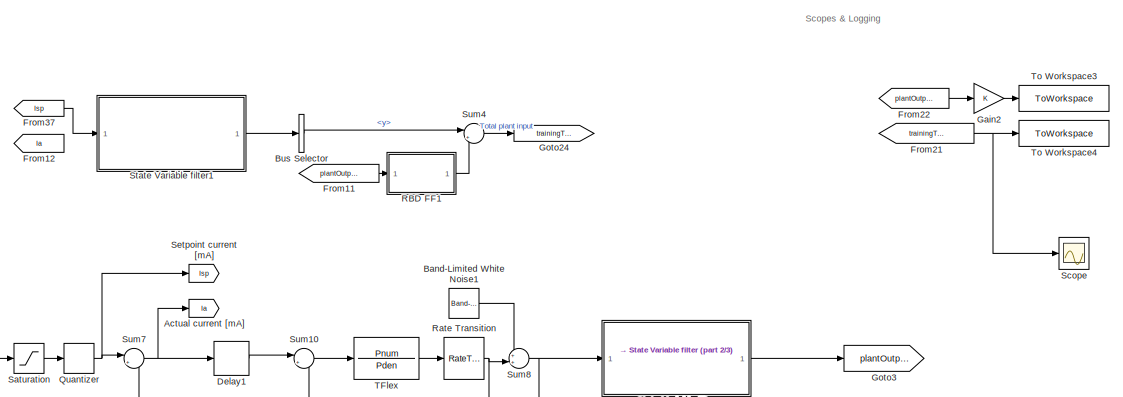
[diagram: root canvas - part 1/3, middle right region]
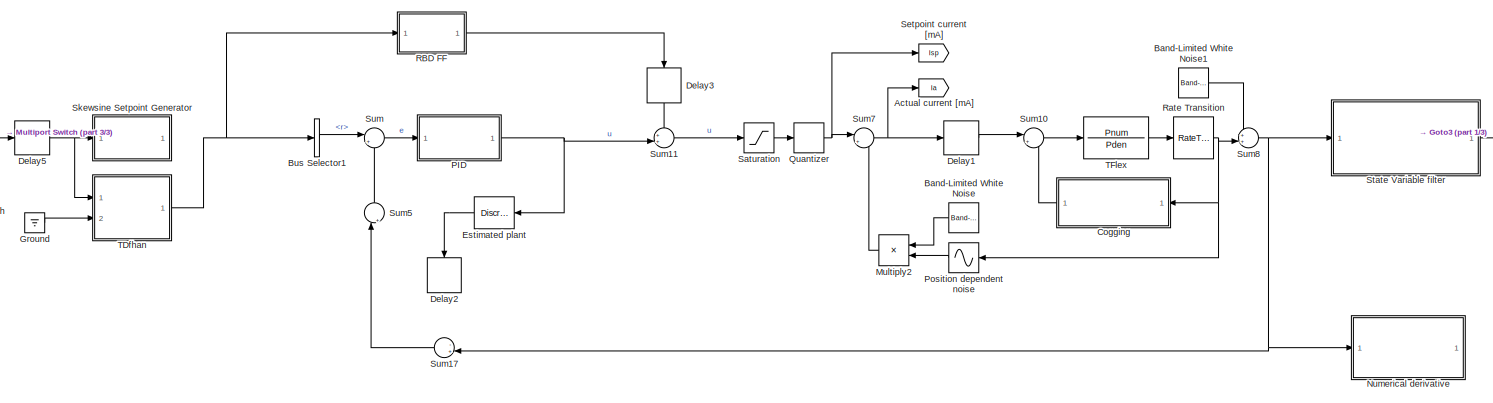
[diagram: root canvas - part 2/3, bottom center region]
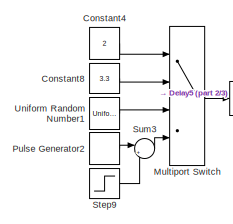
[diagram: root canvas - part 3/3, middle left region]
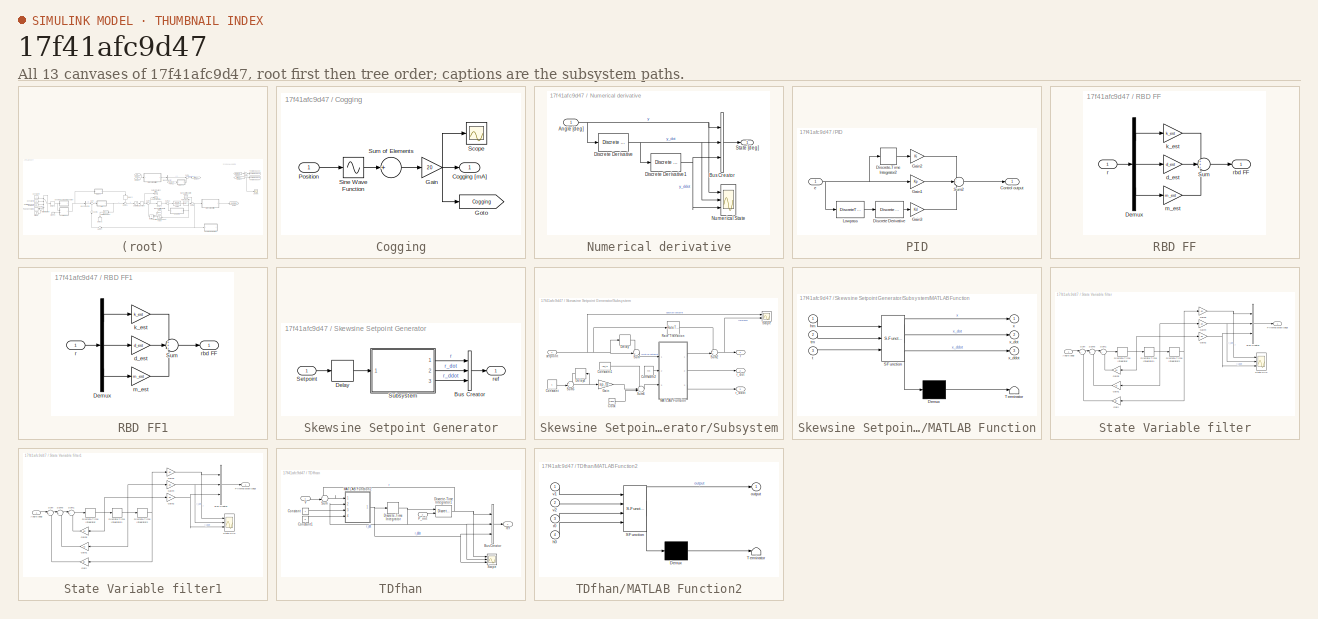
[diagram: thumbnail index - all 13 canvases of the model, root first then tree order]
MODEL slx_17f41afc9d47
KIND model
CONFIG AbsTol = auto
CONFIG EnableMultiTasking = off
CONFIG FixedStep = auto
CONFIG MaxStep = auto
CONFIG MinStep = auto
CONFIG RelTol = 1e-3
CONFIG SampleTimeConstraint = Unconstrained
CONFIG Solver = VariableStepAuto
CONFIG SolverName = VariableStepAuto
CONFIG StartTime = 0.0
CONFIG StopTime = t_sim
BLOCK [Goto] Actual current [mA]
  GotoTag = Ia
BLOCK [Reference] Band-Limited White Noise  REF=simulink/Sources/Band-Limited
White Noise
  Ports = [0, 1]
  SourceBlock = simulink/Sources/Band-Limited\nWhite Noise
  SourceProductBaseCode = SL
  SourceProductName = Simulink
  SourceType = Band-Limited White Noise.
BLOCK [Reference] Band-Limited White Noise1  REF=simulink/Sources/Band-Limited
White Noise
  Ports = [0, 1]
  SourceBlock = simulink/Sources/Band-Limited\nWhite Noise
  SourceProductBaseCode = SL
  SourceProductName = Simulink
  SourceType = Band-Limited White Noise.
BLOCK [BusSelector] Bus Selector
  OutputAsBus = off
  OutputSignals = y
  Ports = [1, 1]
BLOCK [BusSelector] Bus Selector1
  OutputAsBus = off
  OutputSignals = r
  Ports = [1, 1]
BLOCK [SubSystem] Cogging
  Ports = [1, 1]
  RequestExecContextInheritance = off
BLOCK [Outport] Cogging/Cogging [mA]
  IconDisplay = Port number
BLOCK [Gain] Cogging/Gain
  Gain = 20
  OutDataTypeStr = Inherit: Inherit via internal rule
  ParamDataTypeStr = Inherit: Inherit via internal rule
  SaturateOnIntegerOverflow = off
BLOCK [Goto] Cogging/Goto
  GotoTag = Cogging
BLOCK [Inport] Cogging/Position
  IconDisplay = Port number
BLOCK [Scope] Cogging/Scope
  Floating = off
  NumInputPorts = 1
  Ports = [1]
  ScopeSpecificationString = Simulink.scopes.TimeScopeBlockCfg('CurrentConfiguration', extmgr.ConfigurationSet(extmgr.Configuration('Core','General UI',true),extmgr.Configuration('Core','Source UI',true),extmgr.Configuration('Sources','WiredSimulink',true,'DataLoggingVariableName','ScopeData2'),extmgr.Configuration('Visuals','Time Domain',true,'SerializedDisplays',{struct('MinYLimReal','-28.50673','MaxYLimReal','28.50713','YL...<+1388ch>
BLOCK [Sin] Cogging/Sine Wave Function
  Amplitude = a'
  Frequency = 2*pi./f'
  Phase = p'*2*pi
  Ports = [1, 1]
  SampleTime = 0
  TimeSource = Use external signal
BLOCK [Sum] Cogging/Sum of Elements
  InputSameDT = off
  Inputs = +
  OutDataTypeStr = Inherit: Inherit via internal rule
  Ports = [1, 1]
  SaturateOnIntegerOverflow = off
BLOCK [Constant] Constant4
  SampleTime = sp_ts
  Value = 2
BLOCK [Constant] Constant8
  SampleTime = sp_ts
  Value = 3.3
BLOCK [Delay] Delay1
  Commented = through
  DelayLength = 3
  InitialCondition = 0
  InputPortMap = u0
  Ports = [1, 1]
BLOCK [Delay] Delay2
  DelayLength = 3
  InitialCondition = 0
  InputPortMap = u0
  Ports = [1, 1]
BLOCK [Delay] Delay3
  Commented = through
  DelayLength = 3
  InitialCondition = 0
  InputPortMap = u0
  Ports = [1, 1]
BLOCK [Delay] Delay5
  Commented = through
  DelayLength = sp_ts
  InputPortMap = u0
  Ports = [1, 1]
  SampleTime = sp_ts
BLOCK [DiscreteTransferFcn] Estimated plant
  Denominator = P_estden
  InputPortMap = u0
  Numerator = P_estnum
  Ports = [1, 1]
  SampleTime = ts
BLOCK [From] From11
  GotoTag = plantOutput
BLOCK [From] From12
  GotoTag = Ia
BLOCK [From] From21
  GotoTag = trainingTarget
BLOCK [From] From22
  GotoTag = plantOutput
BLOCK [From] From37
  GotoTag = Isp
BLOCK [Gain] Gain2
  OutDataTypeStr = Inherit: Inherit via internal rule
  ParamDataTypeStr = Inherit: Inherit via internal rule
  SaturateOnIntegerOverflow = off
BLOCK [Goto] Goto24
  GotoTag = trainingTarget
BLOCK [Goto] Goto3
  GotoTag = plantOutput
BLOCK [Ground] Ground
BLOCK [Product] Multiply2
  InputSameDT = off
  OutDataTypeStr = Inherit: Inherit via internal rule
  Ports = [2, 1]
  RndMeth = Floor
  SaturateOnIntegerOverflow = off
BLOCK [MultiPortSwitch] Multiport Switch
  InputSameDT = off
  Ports = [4, 1]
  SaturateOnIntegerOverflow = off
BLOCK [SubSystem] Numerical derivative
  Ports = [1, 1]
  RequestExecContextInheritance = off
BLOCK [Inport] Numerical derivative/Angle [deg]
  IconDisplay = Port number
BLOCK [BusCreator] Numerical derivative/Bus Creator
  DisplayOption = bar
  InheritFromInputs = on
  Inputs = 3
  Ports = [3, 1]
BLOCK [Reference] Numerical derivative/Discrete Derivative  REF=simulink/Discrete/Discrete Derivative
  Ports = [1, 1]
  SourceBlock = simulink/Discrete/Discrete Derivative
  SourceProductBaseCode = SL
  SourceProductName = Simulink
  SourceType = Discrete Derivative
BLOCK [Reference] Numerical derivative/Discrete Derivative1  REF=simulink/Discrete/Discrete Derivative
  Ports = [1, 1]
  SourceBlock = simulink/Discrete/Discrete Derivative
  SourceProductBaseCode = SL
  SourceProductName = Simulink
  SourceType = Discrete Derivative
BLOCK [Scope] Numerical derivative/Numerical State
  Floating = off
  NumInputPorts = 3
  Ports = [3]
  ScopeSpecificationString = Simulink.scopes.TimeScopeBlockCfg('CurrentConfiguration', extmgr.ConfigurationSet(extmgr.Configuration('Core','General UI',true),extmgr.Configuration('Core','Source UI',true),extmgr.Configuration('Sources','WiredSimulink',true,'DataLoggingVariableName','ScopeData2','DataLoggingSaveFormat','StructureWithTime'),extmgr.Configuration('Visuals','Time Domain',true,'SerializedDisplays',{struct('MinYLimRe...<+2770ch>
BLOCK [Outport] Numerical derivative/State [deg]
  IconDisplay = Port number
BLOCK [SubSystem] PID
  Ports = [1, 1]
  RequestExecContextInheritance = off
BLOCK [Outport] PID/Control output
  IconDisplay = Port number
BLOCK [Reference] PID/Discrete Derivative  REF=simulink/Discrete/Discrete Derivative
  Ports = [1, 1]
  SourceBlock = simulink/Discrete/Discrete Derivative
  SourceProductBaseCode = SL
  SourceProductName = Simulink
  SourceType = Discrete Derivative
BLOCK [DiscreteIntegrator] PID/Discrete-Time Integrator2
  ICPrevOutput = DiscIntNeverNeededParam
  ICPrevScaledInput = DiscIntNeverNeededParam
  InitialConditionSetting = Auto
  Ports = [1, 1]
  SampleTime = -1
BLOCK [Gain] PID/Gain1
  Gain = Kp
  OutDataTypeStr = Inherit: Inherit via internal rule
  ParamDataTypeStr = Inherit: Inherit via internal rule
  SaturateOnIntegerOverflow = off
BLOCK [Gain] PID/Gain2
  Gain = Ki
  OutDataTypeStr = Inherit: Inherit via internal rule
  ParamDataTypeStr = Inherit: Inherit via internal rule
  SaturateOnIntegerOverflow = off
BLOCK [Gain] PID/Gain3
  Gain = Kd
  OutDataTypeStr = Inherit: Inherit via internal rule
  ParamDataTypeStr = Inherit: Inherit via internal rule
  SaturateOnIntegerOverflow = off
BLOCK [DiscreteTransferFcn] PID/Lowpass
  Denominator = LPden
  InputPortMap = u0
  Numerator = LPnum
  Ports = [1, 1]
  SampleTime = ts
BLOCK [Sum] PID/Sum2
  IconShape = round
  InputSameDT = off
  Inputs = 3
  OutDataTypeStr = Inherit: Inherit via internal rule
  Ports = [3, 1]
  SaturateOnIntegerOverflow = off
BLOCK [Inport] PID/e
  IconDisplay = Port number
BLOCK [Sin] Position dependent noise
  Amplitude = 2.5
  Bias = 7.4979
  Frequency = 2*pi/13
  Ports = [1, 1]
  SampleTime = 0
  TimeSource = Use external signal
BLOCK [DiscretePulseGenerator] Pulse Generator2
  Amplitude = 2*24
  Ports = [0, 1]
  SampleTime = sp_ts
BLOCK [Quantizer] Quantizer
  QuantizationInterval = 1
BLOCK [SubSystem] RBD FF
  Ports = [1, 1]
  RequestExecContextInheritance = off
BLOCK [Demux] RBD FF/Demux
  DisplayOption = bar
  Outputs = 3
  Ports = [1, 3]
BLOCK [Sum] RBD FF/Sum
  IconShape = round
  InputSameDT = off
  Inputs = +++
  OutDataTypeStr = Inherit: Inherit via internal rule
  Ports = [3, 1]
  SaturateOnIntegerOverflow = off
BLOCK [Gain] RBD FF/d_est
  Gain = d_est
  OutDataTypeStr = Inherit: Inherit via internal rule
  ParamDataTypeStr = Inherit: Inherit via internal rule
  SaturateOnIntegerOverflow = off
BLOCK [Gain] RBD FF/k_est
  Gain = k_est
  OutDataTypeStr = Inherit: Inherit via internal rule
  ParamDataTypeStr = Inherit: Inherit via internal rule
  SaturateOnIntegerOverflow = off
BLOCK [Gain] RBD FF/m_est
  Gain = m_est
  OutDataTypeStr = Inherit: Inherit via internal rule
  ParamDataTypeStr = Inherit: Inherit via internal rule
  SaturateOnIntegerOverflow = off
BLOCK [Inport] RBD FF/r
  IconDisplay = Port number
BLOCK [Outport] RBD FF/rbd FF
  IconDisplay = Port number
BLOCK [SubSystem] RBD FF1
  Ports = [1, 1]
  RequestExecContextInheritance = off
BLOCK [Demux] RBD FF1/Demux
  DisplayOption = bar
  Outputs = 3
  Ports = [1, 3]
BLOCK [Sum] RBD FF1/Sum
  IconShape = round
  InputSameDT = off
  Inputs = +++
  OutDataTypeStr = Inherit: Inherit via internal rule
  Ports = [3, 1]
  SaturateOnIntegerOverflow = off
BLOCK [Gain] RBD FF1/d_est
  Gain = d_est
  OutDataTypeStr = Inherit: Inherit via internal rule
  ParamDataTypeStr = Inherit: Inherit via internal rule
  SaturateOnIntegerOverflow = off
BLOCK [Gain] RBD FF1/k_est
  Gain = k_est
  OutDataTypeStr = Inherit: Inherit via internal rule
  ParamDataTypeStr = Inherit: Inherit via internal rule
  SaturateOnIntegerOverflow = off
BLOCK [Gain] RBD FF1/m_est
  Gain = m_est
  OutDataTypeStr = Inherit: Inherit via internal rule
  ParamDataTypeStr = Inherit: Inherit via internal rule
  SaturateOnIntegerOverflow = off
BLOCK [Inport] RBD FF1/r
  IconDisplay = Port number
BLOCK [Outport] RBD FF1/rbd FF
  IconDisplay = Port number
BLOCK [RateTransition] Rate Transition
  OutPortSampleTime = ts
BLOCK [Saturate] Saturation
  InputPortMap = u0
  LowerLimit = -I_limit
  Ports = [1, 1]
  UpperLimit = I_limit
BLOCK [Scope] Scope
  Floating = off
  NumInputPorts = 1
  Ports = [1]
  ScopeSpecificationString = Simulink.scopes.TimeScopeBlockCfg('CurrentConfiguration', extmgr.ConfigurationSet(extmgr.Configuration('Core','General UI',true),extmgr.Configuration('Core','Source UI',true),extmgr.Configuration('Sources','WiredSimulink',true,'DataLoggingVariableName','ScopeData1'),extmgr.Configuration('Visuals','Time Domain',true,'SerializedDisplays',{struct('MinYLimReal','-255.13803','MaxYLimReal','280.71679','...<+1437ch>
BLOCK [Goto] Setpoint current [mA]
  GotoTag = Isp
BLOCK [SubSystem] Skewsine Setpoint Generator
  Ports = [1, 1]
  RequestExecContextInheritance = off
BLOCK [BusCreator] Skewsine Setpoint Generator/Bus Creator
  DisplayOption = bar
  InheritFromInputs = on
  Inputs = 3
  Ports = [3, 1]
BLOCK [Delay] Skewsine Setpoint Generator/Delay
  Commented = through
  DelayLength = 1
  InitialCondition = 0
  InputPortMap = u0
  Ports = [1, 1]
BLOCK [Inport] Skewsine Setpoint Generator/Setpoint
  IconDisplay = Port number
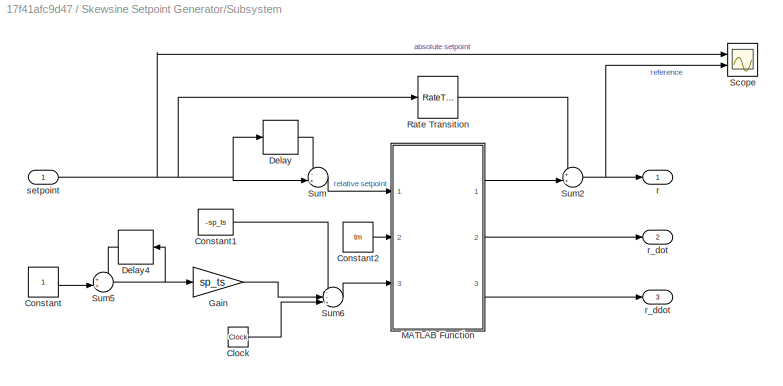
BLOCK [SubSystem] Skewsine Setpoint Generator/Subsystem
  Ports = [1, 3]
  RequestExecContextInheritance = off
BLOCK [Clock] Skewsine Setpoint Generator/Subsystem/Clock
  Decimation = 100
BLOCK [Constant] Skewsine Setpoint Generator/Subsystem/Constant
  SampleTime = sp_ts
BLOCK [Constant] Skewsine Setpoint Generator/Subsystem/Constant1
  SampleTime = sp_ts
  Value = -sp_ts
BLOCK [Constant] Skewsine Setpoint Generator/Subsystem/Constant2
  SampleTime = sp_ts
  Value = tm
BLOCK [Delay] Skewsine Setpoint Generator/Subsystem/Delay
  DelayLength = 1
  InitialCondition = 0
  InputPortMap = u0
  Ports = [1, 1]
  SampleTime = sp_ts
BLOCK [Delay] Skewsine Setpoint Generator/Subsystem/Delay4
  DelayLength = 1
  InitialCondition = 0
  InputPortMap = u0
  Ports = [1, 1]
  SampleTime = sp_ts
BLOCK [Gain] Skewsine Setpoint Generator/Subsystem/Gain
  Gain = sp_ts
  OutDataTypeStr = Inherit: Inherit via internal rule
  ParamDataTypeStr = Inherit: Inherit via internal rule
  SaturateOnIntegerOverflow = off
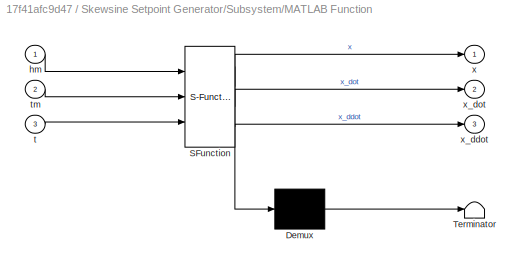
BLOCK [SubSystem] Skewsine Setpoint Generator/Subsystem/MATLAB Function
  ErrorFcn = Stateflow.Translate.translate
  PermitHierarchicalResolution = ExplicitOnly
  Ports = [3, 3]
  RequestExecContextInheritance = off
  SFBlockType = MATLAB Function
  TreatAsAtomicUnit = on
BLOCK [Demux] Skewsine Setpoint Generator/Subsystem/MATLAB Function/ Demux 
  Outputs = 1
  Ports = [1, 1]
BLOCK [S-Function] Skewsine Setpoint Generator/Subsystem/MATLAB Function/ SFunction 
  EnableBusSupport = on
  FunctionName = sf_sfun
  PortCounts = [3 4]
  Ports = [3, 4]
  SFcnIsStateOwnerBlock = off
  SFunctionDeploymentMode = off
  Tag = Stateflow S-Function TFlex_basis 2
BLOCK [Terminator] Skewsine Setpoint Generator/Subsystem/MATLAB Function/ Terminator 
BLOCK [Inport] Skewsine Setpoint Generator/Subsystem/MATLAB Function/hm
  IconDisplay = Port number
BLOCK [Inport] Skewsine Setpoint Generator/Subsystem/MATLAB Function/t
  IconDisplay = Port number
  Port = 3
BLOCK [Inport] Skewsine Setpoint Generator/Subsystem/MATLAB Function/tm
  IconDisplay = Port number
  Port = 2
BLOCK [Outport] Skewsine Setpoint Generator/Subsystem/MATLAB Function/x
  IconDisplay = Port number
BLOCK [Outport] Skewsine Setpoint Generator/Subsystem/MATLAB Function/x_ddot
  IconDisplay = Port number
  Port = 3
BLOCK [Outport] Skewsine Setpoint Generator/Subsystem/MATLAB Function/x_dot
  IconDisplay = Port number
  Port = 2
BLOCK [RateTransition] Skewsine Setpoint Generator/Subsystem/Rate Transition
  OutPortSampleTime = ts
BLOCK [Scope] Skewsine Setpoint Generator/Subsystem/Scope
  Floating = off
  NumInputPorts = 2
  Ports = [2]
  ScopeSpecificationString = Simulink.scopes.TimeScopeBlockCfg('CurrentConfiguration', extmgr.ConfigurationSet(extmgr.Configuration('Core','General UI',true),extmgr.Configuration('Core','Source UI',true),extmgr.Configuration('Sources','WiredSimulink',true,'DataLoggingVariableName','ScopeData2'),extmgr.Configuration('Visuals','Time Domain',true,'SerializedDisplays',{struct('MinYLimReal','-26.98733','MaxYLimReal','28.29894','YL...<+1450ch>
BLOCK [Sum] Skewsine Setpoint Generator/Subsystem/Sum
  IconShape = round
  InputSameDT = off
  Inputs = -+|
  OutDataTypeStr = Inherit: Inherit via internal rule
  Ports = [2, 1]
  SaturateOnIntegerOverflow = off
BLOCK [Sum] Skewsine Setpoint Generator/Subsystem/Sum2
  IconShape = round
  InputSameDT = off
  Inputs = ++|
  OutDataTypeStr = Inherit: Inherit via internal rule
  Ports = [2, 1]
  SaturateOnIntegerOverflow = off
BLOCK [Sum] Skewsine Setpoint Generator/Subsystem/Sum5
  IconShape = round
  InputSameDT = off
  Inputs = ++|
  OutDataTypeStr = Inherit: Inherit via internal rule
  Ports = [2, 1]
  SaturateOnIntegerOverflow = off
BLOCK [Sum] Skewsine Setpoint Generator/Subsystem/Sum6
  IconShape = round
  InputSameDT = off
  Inputs = --+|
  OutDataTypeStr = Inherit: Inherit via internal rule
  Ports = [3, 1]
  SaturateOnIntegerOverflow = off
BLOCK [Outport] Skewsine Setpoint Generator/Subsystem/r
  IconDisplay = Port number
BLOCK [Outport] Skewsine Setpoint Generator/Subsystem/r_ddot
  IconDisplay = Port number
  Port = 3
BLOCK [Outport] Skewsine Setpoint Generator/Subsystem/r_dot
  IconDisplay = Port number
  Port = 2
BLOCK [Inport] Skewsine Setpoint Generator/Subsystem/setpoint
  IconDisplay = Port number
BLOCK [Outport] Skewsine Setpoint Generator/ref
  IconDisplay = Port number
BLOCK [SubSystem] State Variable filter
  Ports = [1, 1]
  RequestExecContextInheritance = off
BLOCK [Inport] State Variable filter/Angle [deg]
  IconDisplay = Port number
BLOCK [BusCreator] State Variable filter/Bus Creator
  DisplayOption = bar
  InheritFromInputs = on
  Inputs = 3
  Ports = [3, 1]
BLOCK [DiscreteIntegrator] State Variable filter/Discrete-Time Integrator
  ICPrevOutput = DiscIntNeverNeededParam
  ICPrevScaledInput = DiscIntNeverNeededParam
  InitialConditionSetting = Auto
  Ports = [1, 1]
  SampleTime = -1
BLOCK [DiscreteIntegrator] State Variable filter/Discrete-Time Integrator1
  ICPrevOutput = DiscIntNeverNeededParam
  ICPrevScaledInput = DiscIntNeverNeededParam
  InitialConditionSetting = Auto
  Ports = [1, 1]
  SampleTime = -1
BLOCK [DiscreteIntegrator] State Variable filter/Discrete-Time Integrator2
  ICPrevOutput = DiscIntNeverNeededParam
  ICPrevScaledInput = DiscIntNeverNeededParam
  InitialConditionSetting = Auto
  Ports = [1, 1]
  SampleTime = -1
BLOCK [Outport] State Variable filter/Filtered state [deg]
  IconDisplay = Port number
  SampleTime = ts
BLOCK [Gain] State Variable filter/Gain
  Gain = a0
  OutDataTypeStr = Inherit: Inherit via internal rule
  ParamDataTypeStr = Inherit: Inherit via internal rule
  SaturateOnIntegerOverflow = off
BLOCK [Gain] State Variable filter/Gain1
  Gain = a1
  OutDataTypeStr = Inherit: Inherit via internal rule
  ParamDataTypeStr = Inherit: Inherit via internal rule
  SaturateOnIntegerOverflow = off
BLOCK [Gain] State Variable filter/Gain2
  Gain = a0
  OutDataTypeStr = Inherit: Inherit via internal rule
  ParamDataTypeStr = Inherit: Inherit via internal rule
  SaturateOnIntegerOverflow = off
BLOCK [Gain] State Variable filter/Gain3
  Gain = a0
  OutDataTypeStr = Inherit: Inherit via internal rule
  ParamDataTypeStr = Inherit: Inherit via internal rule
  SaturateOnIntegerOverflow = off
BLOCK [Gain] State Variable filter/Gain4
  Gain = a0
  OutDataTypeStr = Inherit: Inherit via internal rule
  ParamDataTypeStr = Inherit: Inherit via internal rule
  SaturateOnIntegerOverflow = off
BLOCK [Gain] State Variable filter/Gain5
  Gain = a2
  OutDataTypeStr = Inherit: Inherit via internal rule
  ParamDataTypeStr = Inherit: Inherit via internal rule
  SaturateOnIntegerOverflow = off
BLOCK [Scope] State Variable filter/State SVF
  Floating = off
  NumInputPorts = 3
  Ports = [3]
  ScopeSpecificationString = Simulink.scopes.TimeScopeBlockCfg('CurrentConfiguration', extmgr.ConfigurationSet(extmgr.Configuration('Core','General UI',true),extmgr.Configuration('Core','Source UI',true),extmgr.Configuration('Sources','WiredSimulink',true,'DataLoggingVariableName','ScopeData2','DataLoggingSaveFormat','StructureWithTime'),extmgr.Configuration('Visuals','Time Domain',true,'SerializedDisplays',{struct('MinYLimRe...<+2766ch>
BLOCK [Sum] State Variable filter/Sum
  IconShape = round
  InputSameDT = off
  Inputs = |+-
  OutDataTypeStr = Inherit: Inherit via internal rule
  Ports = [2, 1]
  SaturateOnIntegerOverflow = off
BLOCK [Sum] State Variable filter/Sum1
  IconShape = round
  InputSameDT = off
  Inputs = |+-
  OutDataTypeStr = Inherit: Inherit via internal rule
  Ports = [2, 1]
  SaturateOnIntegerOverflow = off
BLOCK [Sum] State Variable filter/Sum5
  IconShape = round
  InputSameDT = off
  Inputs = |+-
  OutDataTypeStr = Inherit: Inherit via internal rule
  Ports = [2, 1]
  SaturateOnIntegerOverflow = off
BLOCK [SubSystem] State Variable filter1
  Ports = [1, 1]
  RequestExecContextInheritance = off
BLOCK [Inport] State Variable filter1/Angle [deg]
  IconDisplay = Port number
BLOCK [BusCreator] State Variable filter1/Bus Creator
  DisplayOption = bar
  InheritFromInputs = on
  Inputs = 3
  Ports = [3, 1]
BLOCK [DiscreteIntegrator] State Variable filter1/Discrete-Time Integrator
  ICPrevOutput = DiscIntNeverNeededParam
  ICPrevScaledInput = DiscIntNeverNeededParam
  InitialConditionSetting = Auto
  Ports = [1, 1]
  SampleTime = -1
BLOCK [DiscreteIntegrator] State Variable filter1/Discrete-Time Integrator1
  ICPrevOutput = DiscIntNeverNeededParam
  ICPrevScaledInput = DiscIntNeverNeededParam
  InitialConditionSetting = Auto
  Ports = [1, 1]
  SampleTime = -1
BLOCK [DiscreteIntegrator] State Variable filter1/Discrete-Time Integrator2
  ICPrevOutput = DiscIntNeverNeededParam
  ICPrevScaledInput = DiscIntNeverNeededParam
  InitialConditionSetting = Auto
  Ports = [1, 1]
  SampleTime = -1
BLOCK [Outport] State Variable filter1/Filtered state [deg]
  IconDisplay = Port number
  SampleTime = ts
BLOCK [Gain] State Variable filter1/Gain
  Gain = a0
  OutDataTypeStr = Inherit: Inherit via internal rule
  ParamDataTypeStr = Inherit: Inherit via internal rule
  SaturateOnIntegerOverflow = off
BLOCK [Gain] State Variable filter1/Gain1
  Gain = a1
  OutDataTypeStr = Inherit: Inherit via internal rule
  ParamDataTypeStr = Inherit: Inherit via internal rule
  SaturateOnIntegerOverflow = off
BLOCK [Gain] State Variable filter1/Gain2
  Gain = a0
  OutDataTypeStr = Inherit: Inherit via internal rule
  ParamDataTypeStr = Inherit: Inherit via internal rule
  SaturateOnIntegerOverflow = off
BLOCK [Gain] State Variable filter1/Gain3
  Gain = a0
  OutDataTypeStr = Inherit: Inherit via internal rule
  ParamDataTypeStr = Inherit: Inherit via internal rule
  SaturateOnIntegerOverflow = off
BLOCK [Gain] State Variable filter1/Gain4
  Gain = a0
  OutDataTypeStr = Inherit: Inherit via internal rule
  ParamDataTypeStr = Inherit: Inherit via internal rule
  SaturateOnIntegerOverflow = off
BLOCK [Gain] State Variable filter1/Gain5
  Gain = a2
  OutDataTypeStr = Inherit: Inherit via internal rule
  ParamDataTypeStr = Inherit: Inherit via internal rule
  SaturateOnIntegerOverflow = off
BLOCK [Scope] State Variable filter1/State SVF
  Floating = off
  NumInputPorts = 3
  Ports = [3]
  ScopeSpecificationString = Simulink.scopes.TimeScopeBlockCfg('CurrentConfiguration', extmgr.ConfigurationSet(extmgr.Configuration('Core','General UI',true),extmgr.Configuration('Core','Source UI',true),extmgr.Configuration('Sources','WiredSimulink',true,'DataLoggingVariableName','ScopeData2','DataLoggingSaveFormat','StructureWithTime'),extmgr.Configuration('Visuals','Time Domain',true,'SerializedDisplays',{struct('MinYLimRe...<+2766ch>
BLOCK [Sum] State Variable filter1/Sum
  IconShape = round
  InputSameDT = off
  Inputs = |+-
  OutDataTypeStr = Inherit: Inherit via internal rule
  Ports = [2, 1]
  SaturateOnIntegerOverflow = off
BLOCK [Sum] State Variable filter1/Sum1
  IconShape = round
  InputSameDT = off
  Inputs = |+-
  OutDataTypeStr = Inherit: Inherit via internal rule
  Ports = [2, 1]
  SaturateOnIntegerOverflow = off
BLOCK [Sum] State Variable filter1/Sum5
  IconShape = round
  InputSameDT = off
  Inputs = |+-
  OutDataTypeStr = Inherit: Inherit via internal rule
  Ports = [2, 1]
  SaturateOnIntegerOverflow = off
BLOCK [Step] Step9
  After = -24
  SampleTime = sp_ts
  Time = 0
BLOCK [Sum] Sum
  IconShape = round
  InputSameDT = off
  Inputs = |+-
  OutDataTypeStr = Inherit: Inherit via internal rule
  Ports = [2, 1]
  SaturateOnIntegerOverflow = off
BLOCK [Sum] Sum10
  IconShape = round
  InputSameDT = off
  Inputs = |+-
  OutDataTypeStr = Inherit: Inherit via internal rule
  Ports = [2, 1]
  SaturateOnIntegerOverflow = off
BLOCK [Sum] Sum11
  IconShape = round
  InputSameDT = off
  Inputs = ++|
  OutDataTypeStr = Inherit: Inherit via internal rule
  Ports = [2, 1]
  SaturateOnIntegerOverflow = off
BLOCK [Sum] Sum17
  IconShape = round
  InputSameDT = off
  Inputs = -+|
  OutDataTypeStr = Inherit: Inherit via internal rule
  Ports = [2, 1]
  SaturateOnIntegerOverflow = off
BLOCK [Sum] Sum3
  IconShape = round
  InputSameDT = off
  Inputs = |++
  OutDataTypeStr = Inherit: Inherit via internal rule
  Ports = [2, 1]
  SaturateOnIntegerOverflow = off
BLOCK [Sum] Sum4
  IconShape = round
  InputSameDT = off
  Inputs = |+-
  OutDataTypeStr = Inherit: Inherit via internal rule
  Ports = [2, 1]
  SaturateOnIntegerOverflow = off
BLOCK [Sum] Sum5
  IconShape = round
  InputSameDT = off
  Inputs = |++
  OutDataTypeStr = Inherit: Inherit via internal rule
  Ports = [2, 1]
  SaturateOnIntegerOverflow = off
BLOCK [Sum] Sum7
  IconShape = round
  InputSameDT = off
  Inputs = |+-
  OutDataTypeStr = Inherit: Inherit via internal rule
  Ports = [2, 1]
  SaturateOnIntegerOverflow = off
BLOCK [Sum] Sum8
  IconShape = round
  InputSameDT = off
  Inputs = ++|
  OutDataTypeStr = Inherit: Inherit via internal rule
  Ports = [2, 1]
  SaturateOnIntegerOverflow = off
BLOCK [SubSystem] TDfhan
  Ports = [2, 1]
  RequestExecContextInheritance = off
BLOCK [BusCreator] TDfhan/Bus Creator
  DisplayOption = bar
  InheritFromInputs = on
  Inputs = 3
  Ports = [3, 1]
BLOCK [Constant] TDfhan/Constant
  SampleTime = ts
  Value = r
BLOCK [Constant] TDfhan/Constant1
  SampleTime = ts
  Value = h
BLOCK [DiscreteIntegrator] TDfhan/Discrete-Time Integrator
  ICPrevOutput = DiscIntNeverNeededParam
  ICPrevScaledInput = DiscIntNeverNeededParam
  InitialConditionSetting = Auto
  Ports = [1, 1]
  SampleTime = ts
  gainval = 1
BLOCK [DiscreteIntegrator] TDfhan/Discrete-Time Integrator1
  ICPrevOutput = DiscIntNeverNeededParam
  ICPrevScaledInput = DiscIntNeverNeededParam
  InitialCondition = -24
  InitialConditionSetting = Auto
  InitialConditionSource = external
  Ports = [2, 1]
  SampleTime = ts
  gainval = 1
BLOCK [SubSystem] TDfhan/MATLAB Function2
  ErrorFcn = Stateflow.Translate.translate
  PermitHierarchicalResolution = ExplicitOnly
  Ports = [4, 1]
  RequestExecContextInheritance = off
  SFBlockType = MATLAB Function
  TreatAsAtomicUnit = on
BLOCK [Demux] TDfhan/MATLAB Function2/ Demux 
  Outputs = 1
  Ports = [1, 1]
BLOCK [S-Function] TDfhan/MATLAB Function2/ SFunction 
  EnableBusSupport = on
  FunctionName = sf_sfun
  PortCounts = [4 2]
  Ports = [4, 2]
  SFcnIsStateOwnerBlock = off
  SFunctionDeploymentMode = off
  Tag = Stateflow S-Function TFlex_basis 7
BLOCK [Terminator] TDfhan/MATLAB Function2/ Terminator 
BLOCK [Inport] TDfhan/MATLAB Function2/h0
  IconDisplay = Port number
  Port = 4
BLOCK [Outport] TDfhan/MATLAB Function2/output
  IconDisplay = Port number
BLOCK [Inport] TDfhan/MATLAB Function2/r0
  IconDisplay = Port number
  Port = 3
BLOCK [Inport] TDfhan/MATLAB Function2/v1
  IconDisplay = Port number
BLOCK [Inport] TDfhan/MATLAB Function2/v2
  IconDisplay = Port number
  Port = 2
BLOCK [Inport] TDfhan/P_init
  IconDisplay = Port number
  Port = 2
BLOCK [Scope] TDfhan/Scope
  Floating = off
  NumInputPorts = 3
  Ports = [3]
  ScopeSpecificationString = Simulink.scopes.TimeScopeBlockCfg('CurrentConfiguration', extmgr.ConfigurationSet(extmgr.Configuration('Core','General UI',true),extmgr.Configuration('Core','Source UI',true),extmgr.Configuration('Sources','WiredSimulink',true,'DataLoggingVariableName','ScopeData1'),extmgr.Configuration('Visuals','Time Domain',true,'SerializedDisplays',{struct('MinYLimReal','-0.22989','MaxYLimReal','0.25408','YLab...<+2795ch>
BLOCK [Sum] TDfhan/Sum
  IconShape = round
  InputSameDT = off
  Inputs = +-|
  OutDataTypeStr = Inherit: Inherit via internal rule
  Ports = [2, 1]
  SaturateOnIntegerOverflow = off
BLOCK [Inport] TDfhan/V
  IconDisplay = Port number
BLOCK [Outport] TDfhan/ref
  IconDisplay = Port number
BLOCK [TransferFcn] TFlex
  ContinuousStateAttributes = 'angle'
  Denominator = Pden
  Numerator = Pnum
BLOCK [ToWorkspace] To Workspace3
  FixptAsFi = on
  MaxDataPoints = inf
  Ports = [1]
  SampleTime = -1
  Save2DSignal = 3-D array (concatenate along third dimension)
  VariableName = trainingInput
BLOCK [ToWorkspace] To Workspace4
  FixptAsFi = on
  MaxDataPoints = inf
  Ports = [1]
  SampleTime = -1
  Save2DSignal = 3-D array (concatenate along third dimension)
  VariableName = trainingTarget
BLOCK [UniformRandomNumber] Uniform Random Number1
  Maximum = 20
  Minimum = -20
  SampleTime = sp_ts
  Seed = seed
ANNOTATION (root): Scopes & Logging
LINE Band-Limited White Noise1:1 -> Sum8:1
LINE Band-Limited White Noise:1 -> Multiply2:1
LINE Bus Selector1:1 -> Sum:1
LINE Bus Selector:1 -> Sum4:1
NET Cogging/Gain:1 -> Cogging/Cogging [mA]:1, Cogging/Goto:1, Cogging/Scope:1
LINE Cogging/Position:1 -> Cogging/Sine Wave Function:1
LINE Cogging/Sine Wave Function:1 -> Cogging/Sum of Elements:1
LINE Cogging/Sum of Elements:1 -> Cogging/Gain:1
LINE Cogging:1 -> Sum10:2
LINE Constant4:1 -> Multiport Switch:1
LINE Constant8:1 -> Multiport Switch:2
LINE Delay1:1 -> Sum10:1
LINE Delay3:1 -> Sum11:1
NET Delay5:1 -> Skewsine Setpoint Generator:1, TDfhan:1
LINE Estimated plant:1 -> Delay2:1
LINE From11:1 -> RBD FF1:1
NET From21:1 -> Scope:1, To Workspace4:1
LINE From22:1 -> Gain2:1
LINE From37:1 -> State Variable filter1:1
LINE Gain2:1 -> To Workspace3:1
LINE Ground:1 -> TDfhan:2
LINE Multiply2:1 -> Sum7:2
LINE Multiport Switch:1 -> Delay5:1
NET Numerical derivative/Angle [deg]:1 -> Numerical derivative/Bus Creator:1, Numerical derivative/Discrete Derivative:1, Numerical derivative/Numerical State:1
LINE Numerical derivative/Bus Creator:1 -> Numerical derivative/State [deg]:1
NET Numerical derivative/Discrete Derivative1:1 -> Numerical derivative/Bus Creator:3, Numerical derivative/Numerical State:3
NET Numerical derivative/Discrete Derivative:1 -> Numerical derivative/Bus Creator:2, Numerical derivative/Discrete Derivative1:1, Numerical derivative/Numerical State:2
LINE PID/Discrete Derivative:1 -> PID/Gain3:1
LINE PID/Discrete-Time Integrator2:1 -> PID/Gain2:1
LINE PID/Gain1:1 -> PID/Sum2:2
LINE PID/Gain2:1 -> PID/Sum2:1
LINE PID/Gain3:1 -> PID/Sum2:3
LINE PID/Lowpass:1 -> PID/Discrete Derivative:1
LINE PID/Sum2:1 -> PID/Control output:1
NET PID/e:1 -> PID/Discrete-Time Integrator2:1, PID/Gain1:1, PID/Lowpass:1
NET PID:1 -> Estimated plant:1, Sum11:2
LINE Position dependent noise:1 -> Multiply2:2
LINE Pulse Generator2:1 -> Sum3:1
NET Quantizer:1 -> Setpoint current [mA]:1, Sum7:1
LINE RBD FF/Demux:1 -> RBD FF/k_est:1
LINE RBD FF/Demux:2 -> RBD FF/d_est:1
LINE RBD FF/Demux:3 -> RBD FF/m_est:1
LINE RBD FF/Sum:1 -> RBD FF/rbd FF:1
LINE RBD FF/d_est:1 -> RBD FF/Sum:2
LINE RBD FF/k_est:1 -> RBD FF/Sum:1
LINE RBD FF/m_est:1 -> RBD FF/Sum:3
LINE RBD FF/r:1 -> RBD FF/Demux:1
LINE RBD FF1/Demux:1 -> RBD FF1/k_est:1
LINE RBD FF1/Demux:2 -> RBD FF1/d_est:1
LINE RBD FF1/Demux:3 -> RBD FF1/m_est:1
LINE RBD FF1/Sum:1 -> RBD FF1/rbd FF:1
LINE RBD FF1/d_est:1 -> RBD FF1/Sum:2
LINE RBD FF1/k_est:1 -> RBD FF1/Sum:1
LINE RBD FF1/m_est:1 -> RBD FF1/Sum:3
LINE RBD FF1/r:1 -> RBD FF1/Demux:1
LINE RBD FF1:1 -> Sum4:2
LINE RBD FF:1 -> Delay3:1
NET Rate Transition:1 -> Cogging:1, Position dependent noise:1, Sum8:2
LINE Saturation:1 -> Quantizer:1
LINE Skewsine Setpoint Generator/Bus Creator:1 -> Skewsine Setpoint Generator/ref:1
LINE Skewsine Setpoint Generator/Delay:1 -> Skewsine Setpoint Generator/Subsystem:1
LINE Skewsine Setpoint Generator/Setpoint:1 -> Skewsine Setpoint Generator/Delay:1
LINE Skewsine Setpoint Generator/Subsystem/Clock:1 -> Skewsine Setpoint Generator/Subsystem/Sum6:3
LINE Skewsine Setpoint Generator/Subsystem/Constant1:1 -> Skewsine Setpoint Generator/Subsystem/Sum6:1
LINE Skewsine Setpoint Generator/Subsystem/Constant2:1 -> Skewsine Setpoint Generator/Subsystem/MATLAB Function:2
LINE Skewsine Setpoint Generator/Subsystem/Constant:1 -> Skewsine Setpoint Generator/Subsystem/Sum5:2
LINE Skewsine Setpoint Generator/Subsystem/Delay4:1 -> Skewsine Setpoint Generator/Subsystem/Sum5:1
LINE Skewsine Setpoint Generator/Subsystem/Delay:1 -> Skewsine Setpoint Generator/Subsystem/Sum:1
LINE Skewsine Setpoint Generator/Subsystem/Gain:1 -> Skewsine Setpoint Generator/Subsystem/Sum6:2
LINE Skewsine Setpoint Generator/Subsystem/MATLAB Function:1 -> Skewsine Setpoint Generator/Subsystem/Sum2:2
LINE Skewsine Setpoint Generator/Subsystem/MATLAB Function:2 -> Skewsine Setpoint Generator/Subsystem/r_dot:1
LINE Skewsine Setpoint Generator/Subsystem/MATLAB Function:3 -> Skewsine Setpoint Generator/Subsystem/r_ddot:1
LINE Skewsine Setpoint Generator/Subsystem/Rate Transition:1 -> Skewsine Setpoint Generator/Subsystem/Sum2:1
NET Skewsine Setpoint Generator/Subsystem/Sum2:1 -> Skewsine Setpoint Generator/Subsystem/Scope:2, Skewsine Setpoint Generator/Subsystem/r:1
NET Skewsine Setpoint Generator/Subsystem/Sum5:1 -> Skewsine Setpoint Generator/Subsystem/Delay4:1, Skewsine Setpoint Generator/Subsystem/Gain:1
LINE Skewsine Setpoint Generator/Subsystem/Sum6:1 -> Skewsine Setpoint Generator/Subsystem/MATLAB Function:3
LINE Skewsine Setpoint Generator/Subsystem/Sum:1 -> Skewsine Setpoint Generator/Subsystem/MATLAB Function:1
NET Skewsine Setpoint Generator/Subsystem/setpoint:1 -> Skewsine Setpoint Generator/Subsystem/Delay:1, Skewsine Setpoint Generator/Subsystem/Rate Transition:1, Skewsine Setpoint Generator/Subsystem/Scope:1, Skewsine Setpoint Generator/Subsystem/Sum:2
LINE Skewsine Setpoint Generator/Subsystem:1 -> Skewsine Setpoint Generator/Bus Creator:1
LINE Skewsine Setpoint Generator/Subsystem:2 -> Skewsine Setpoint Generator/Bus Creator:2
LINE Skewsine Setpoint Generator/Subsystem:3 -> Skewsine Setpoint Generator/Bus Creator:3
LINE State Variable filter/Angle [deg]:1 -> State Variable filter/Sum:1
LINE State Variable filter/Bus Creator:1 -> State Variable filter/Filtered state [deg]:1
NET State Variable filter/Discrete-Time Integrator1:1 -> State Variable filter/Discrete-Time Integrator2:1, State Variable filter/Gain1:1, State Variable filter/Gain4:1
NET State Variable filter/Discrete-Time Integrator2:1 -> State Variable filter/Gain3:1, State Variable filter/Gain:1
NET State Variable filter/Discrete-Time Integrator:1 -> State Variable filter/Discrete-Time Integrator1:1, State Variable filter/Gain2:1, State Variable filter/Gain5:1
LINE State Variable filter/Gain1:1 -> State Variable filter/Sum5:2
NET State Variable filter/Gain2:1 -> State Variable filter/Bus Creator:3, State Variable filter/State SVF:3
NET State Variable filter/Gain3:1 -> State Variable filter/Bus Creator:1, State Variable filter/State SVF:1
NET State Variable filter/Gain4:1 -> State Variable filter/Bus Creator:2, State Variable filter/State SVF:2
LINE State Variable filter/Gain5:1 -> State Variable filter/Sum1:2
LINE State Variable filter/Gain:1 -> State Variable filter/Sum:2
LINE State Variable filter/Sum1:1 -> State Variable filter/Discrete-Time Integrator:1
LINE State Variable filter/Sum5:1 -> State Variable filter/Sum1:1
LINE State Variable filter/Sum:1 -> State Variable filter/Sum5:1
LINE State Variable filter1/Angle [deg]:1 -> State Variable filter1/Sum:1
LINE State Variable filter1/Bus Creator:1 -> State Variable filter1/Filtered state [deg]:1
NET State Variable filter1/Discrete-Time Integrator1:1 -> State Variable filter1/Discrete-Time Integrator2:1, State Variable filter1/Gain1:1, State Variable filter1/Gain4:1
NET State Variable filter1/Discrete-Time Integrator2:1 -> State Variable filter1/Gain3:1, State Variable filter1/Gain:1
NET State Variable filter1/Discrete-Time Integrator:1 -> State Variable filter1/Discrete-Time Integrator1:1, State Variable filter1/Gain2:1, State Variable filter1/Gain5:1
LINE State Variable filter1/Gain1:1 -> State Variable filter1/Sum5:2
NET State Variable filter1/Gain2:1 -> State Variable filter1/Bus Creator:3, State Variable filter1/State SVF:3
NET State Variable filter1/Gain3:1 -> State Variable filter1/Bus Creator:1, State Variable filter1/State SVF:1
NET State Variable filter1/Gain4:1 -> State Variable filter1/Bus Creator:2, State Variable filter1/State SVF:2
LINE State Variable filter1/Gain5:1 -> State Variable filter1/Sum1:2
LINE State Variable filter1/Gain:1 -> State Variable filter1/Sum:2
LINE State Variable filter1/Sum1:1 -> State Variable filter1/Discrete-Time Integrator:1
LINE State Variable filter1/Sum5:1 -> State Variable filter1/Sum1:1
LINE State Variable filter1/Sum:1 -> State Variable filter1/Sum5:1
LINE State Variable filter1:1 -> Bus Selector:1
LINE State Variable filter:1 -> Goto3:1
LINE Step9:1 -> Sum3:2
LINE Sum10:1 -> TFlex:1
LINE Sum11:1 -> Saturation:1
LINE Sum17:1 -> Sum5:1
LINE Sum3:1 -> Multiport Switch:4
LINE Sum4:1 -> Goto24:1
LINE Sum5:1 -> Sum:2
NET Sum7:1 -> Actual current [mA]:1, Delay1:1
NET Sum8:1 -> Numerical derivative:1, State Variable filter:1, Sum17:2
LINE Sum:1 -> PID:1
LINE TDfhan/Bus Creator:1 -> TDfhan/ref:1
LINE TDfhan/Constant1:1 -> TDfhan/MATLAB Function2:4
LINE TDfhan/Constant:1 -> TDfhan/MATLAB Function2:3
NET TDfhan/Discrete-Time Integrator1:1 -> TDfhan/Bus Creator:1, TDfhan/Scope:1, TDfhan/Sum:1
NET TDfhan/Discrete-Time Integrator:1 -> TDfhan/Bus Creator:2, TDfhan/Discrete-Time Integrator1:1, TDfhan/MATLAB Function2:2, TDfhan/Scope:2
NET TDfhan/MATLAB Function2:1 -> TDfhan/Bus Creator:3, TDfhan/Discrete-Time Integrator:1, TDfhan/Scope:3
LINE TDfhan/P_init:1 -> TDfhan/Discrete-Time Integrator1:2
LINE TDfhan/Sum:1 -> TDfhan/MATLAB Function2:1
LINE TDfhan/V:1 -> TDfhan/Sum:2
NET TDfhan:1 -> Bus Selector1:1, RBD FF:1
LINE TFlex:1 -> Rate Transition:1
LINE Uniform Random Number1:1 -> Multiport Switch:3
note: NET lines group one-source signal fan-out (src -> all destinations, sorted); 1:1 wires keep LINE
CHART Skewsine Setpoint Generator/Subsystem/MATLAB Function states=1 transitions=1
  STATE_LABEL 'eML_blk_kernel()'
  STATE_LABEL 'SCRIPT:\nfunction [x,x_dot,x_ddot] = skewSine(hm,tm,t)\n\nif (t>=0) && (t<=tm)\n    x      = hm/tm*t - hm/(2*pi)*sin(2*pi/tm*t);\n    x_dot  = hm/tm - hm/tm*cos(2*pi/tm*t);\n    x_ddot = 2*pi*hm/(tm^2)*sin(2*pi/tm*t);\nelse\n    x      = hm;\n    x_dot  = 0;\n    x_ddot = 0;\nend\n\n'
CHART TDfhan/MATLAB Function2 states=1 transitions=1
  STATE_LABEL 'eML_blk_kernel()'
  STATE_LABEL 'SCRIPT:\nfunction output = Fhan(v1,v2,r0, h0)\nd = h0^2*r0;\na0 = h0*v2;\ny = v1 + a0;\na1 = sqrt(d*(d+8*abs(y)));\na2 = a0 + sign(y)*(a1-d)/2;\nsy = (sign(y+d)-sign(y-d))/2;\na = (a0+y-a2)*sy +a2;\nsa = (sign(a+d)-sign(a-d))/2;\noutput = -r0 *(a/d -sign(a) )*sa - r0*sign(a);\n'
